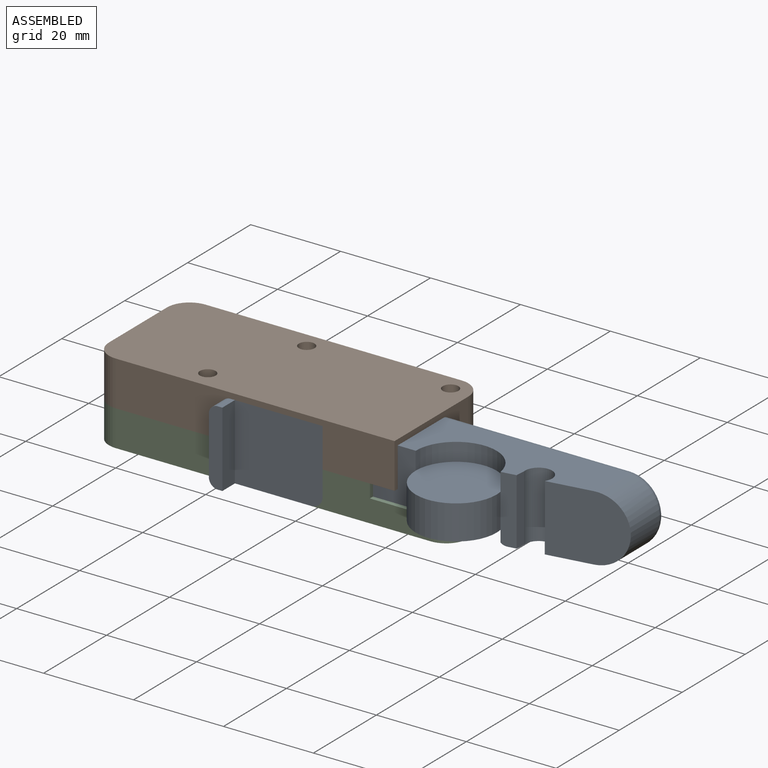
[diagram: assembled view]
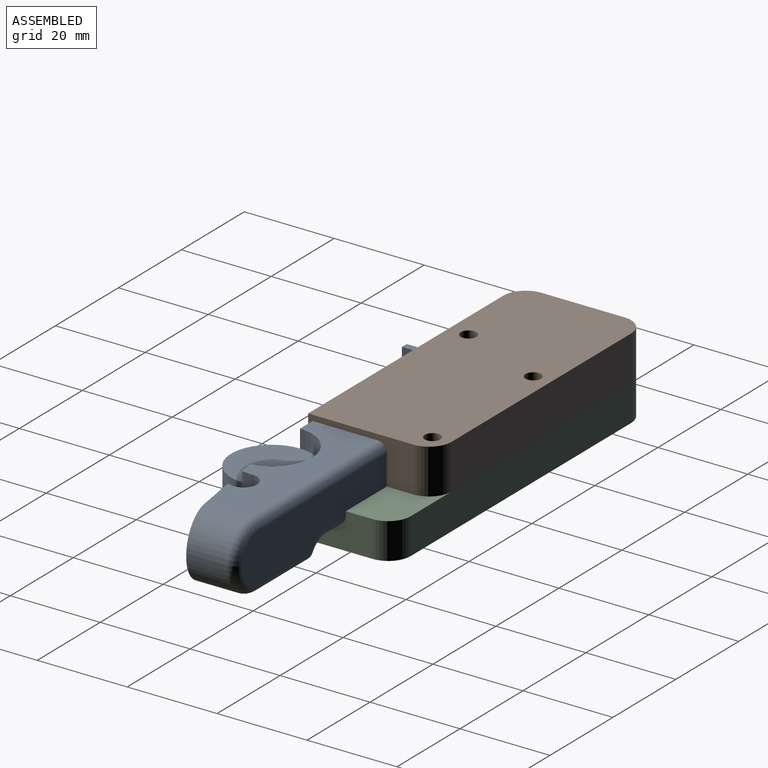
[diagram: assembled view, second angle]
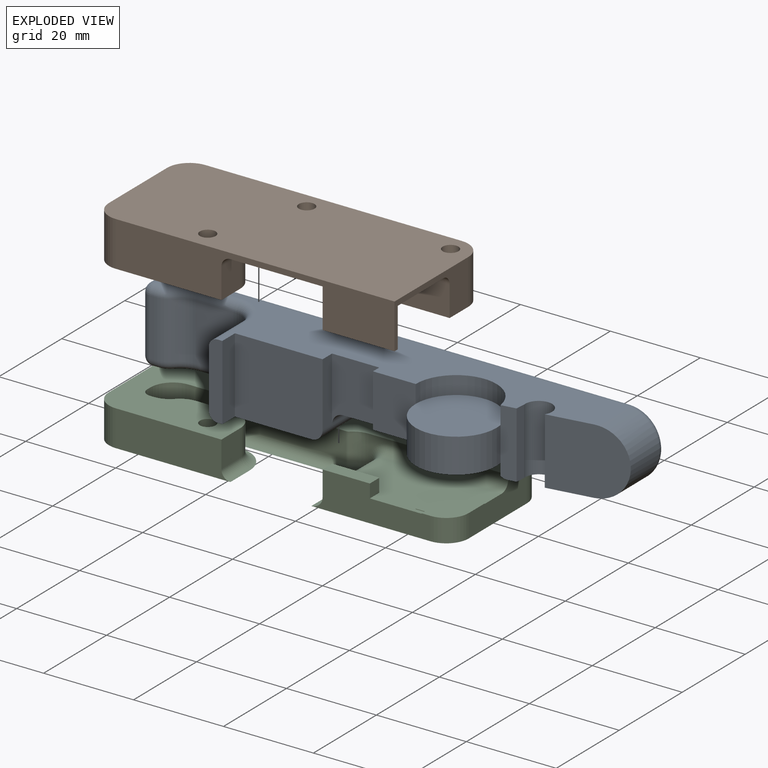
[diagram: exploded view]
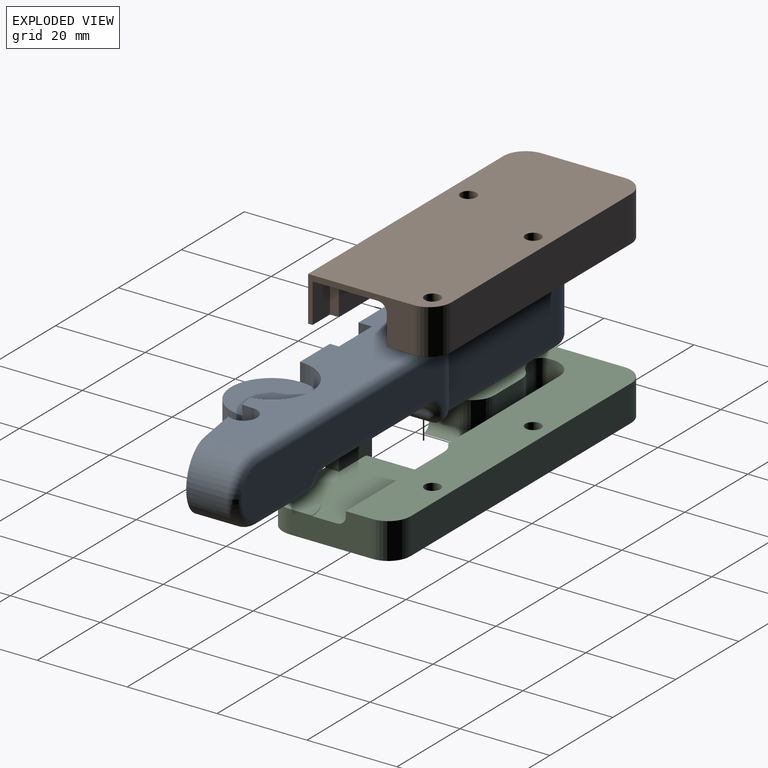
[diagram: exploded view, second angle]
ASSEMBLY  parts=3 mates=2
PART A: 71 faces, bbox 111x25.9x17.4 mm
  f0: cylinder r=9mm len=17.89mm, axis (0,0,-1), area 10.3mm2, adj f2,f12,f19,f30,f34,f35
  f1: plane 41.5x19.46mm, normal (0,0,-1), area 302.3mm2, adj f8,f31,f36,f37,f59,f60,f61,f62
  f2: plane 14.77x3.24mm, normal (0.16,-0.99,0), area 47.8mm2, adj f0,f4,f13,f18,f27,f28,f35
  f3: plane 64.03x12.42mm, normal (0,1,0), area 559.3mm2, adj f21,f50,f51,f52,f54,f55,f56,f57
  f4: plane 14.75x2.15mm, normal (1,-0.07,0), area 31.8mm2, adj f2,f5,f18,f27
  f5: cylinder r=3mm len=14.75mm, axis (0,0,-1), area 169.8mm2, adj f4,f6,f18,f27
  f6: plane 17.24x14.75mm, normal (0.16,-0.99,0), area 233.8mm2, adj f5,f18,f27,f33
  f7: plane 12.75x10mm, normal (-1,0,0), area 127.5mm2, adj f22,f37,f38,f70
  f8: plane 19.5x16.75mm, normal (0,-1,0), area 325.3mm2, adj f1,f9,f18,f31,f36
  f9: plane 14.25x3mm, normal (1,0,0), area 42.7mm2, adj f8,f10,f18,f31
  f10: plane 14.25x10.5mm, normal (0,-1,0), area 124.7mm2, adj f9,f11,f18,f19,f32
  f11: plane 11.75x2mm, normal (-1,0,0), area 23.5mm2, adj f10,f12,f18,f19
  f12: plane 11.75x9.5mm, normal (0,-1,0), area 111.6mm2, adj f0,f11,f13,f18,f19,f28
  f13: cylinder r=9mm len=17.89mm, axis (0,0,-1), area 107.5mm2, adj f2,f12,f18,f29
  f14: plane 35x12.75mm, normal (0,1,0), area 446.3mm2, adj f20,f24,f47,f61
  f15: plane 12.75x1mm, normal (-1,0,0), area 12.8mm2, adj f24,f26,f45,f63
  f16: plane 12.75x0.94mm, normal (0,-1,0), area 12mm2, adj f25,f26,f43,f65
  f17: plane 12.75x8.42mm, normal (0,-1,0), area 107.3mm2, adj f22,f23,f40,f68
  f18: plane 100.63x19.5mm, normal (0,0,1), area 934mm2, adj f2,f4,f5,f6,f8,f9,f10,f11
  f19: plane 31.79x14.5mm, normal (0,0,-1), area 335.1mm2, adj f0,f10,f11,f12,f32,f34,f55
  f20: cylinder r=1mm len=12.75mm, axis (0,0,1), area 9.2mm2, adj f14,f21,f48,f60
  f21: cylinder r=5mm len=12.75mm, axis (0,0,1), area 46mm2, adj f3,f20,f49,f58,f59
  f22: cylinder r=5mm len=12.75mm, axis (0,0,1), area 100.1mm2, adj f7,f17,f39,f69
  f23: cylinder r=5mm len=12.75mm, axis (0,0,-1), area 50.7mm2, adj f17,f25,f41,f67
  f24: cylinder r=5mm len=12.75mm, axis (0,0,-1), area 100.1mm2, adj f14,f15,f46,f62
  f25: cylinder r=5mm len=12.75mm, axis (0,0,-1), area 50.7mm2, adj f16,f23,f42,f66
  f26: cylinder r=2mm len=12.75mm, axis (0,0,-1), area 40.1mm2, adj f15,f16,f44,f64
  f27: plane 17.35x12.89mm, normal (0,0,-1), area 168.8mm2, adj f2,f4,f5,f6,f33,f35,f52
  f28: cylinder r=9mm len=18mm, axis (0,0,-1), area 227mm2, adj f2,f12,f29,f30
  f29: plane 18x18mm, normal (0,0,1), area 254.5mm2, adj f13,f28
  f30: plane 18x18mm, normal (0,0,-1), area 254.5mm2, adj f0,f28
  f31: cylinder r=2.5mm len=15.5mm, axis (0,1,0), area 60.8mm2, adj f1,f8,f9,f32,f57,f58
  f32: cylinder r=2.5mm len=12.5mm, axis (0,-1,0), area 49.1mm2, adj f10,f19,f31,f56
  f33: cylinder r=7.38mm len=14.75mm, axis (0,-1,0), area 218.3mm2, adj f6,f18,f27,f51
  f34: cylinder r=5mm len=12.46mm, axis (0.06,1,0), area 44.2mm2, adj f0,f19,f35,f54
  f35: cylinder r=2mm len=13.28mm, axis (0.06,1,0), area 25mm2, adj f0,f2,f27,f34,f53
  f36: plane 16.75x4mm, normal (1,0,0), area 67mm2, adj f1,f8,f18,f37
  f37: plane 16.75x3mm, normal (0,-1,0), area 48.5mm2, adj f1,f7,f18,f36,f38,f70
  f38: cylinder r=2mm len=10mm, axis (0,1,0), area 31.4mm2, adj f7,f18,f37,f39
  f39: torus R=7mm, axis (0,0,1), area 28.3mm2, adj f18,f22,f38,f40
  f40: cylinder r=2mm len=8.42mm, axis (-1,0,0), area 26.4mm2, adj f17,f18,f39,f41
  f41: torus R=7mm, axis (0,0,1), area 14.3mm2, adj f18,f23,f40,f42
  f42: torus R=3mm, axis (0,0,1), area 10.7mm2, adj f18,f25,f41,f43
  f43: cylinder r=2mm len=2mm, axis (-1,0,0), area 3mm2, adj f16,f18,f42,f44
  f44: sphere r=2mm, area 6.3mm2, adj f26,f43,f45
  f45: cylinder r=2mm len=2mm, axis (0,1,0), area 3.1mm2, adj f15,f18,f44,f46
  f46: torus R=3mm, axis (0,0,1), area 21.1mm2, adj f18,f24,f45,f47
  f47: cylinder r=2mm len=35mm, axis (1,0,0), area 110mm2, adj f14,f18,f46,f48
  f48: torus R=3mm, axis (0,0,1), area 3.9mm2, adj f18,f20,f47,f49
  f49: torus R=3mm, axis (0,0,1), area 9.7mm2, adj f18,f21,f48,f50
  f50: cylinder r=2mm len=58.66mm, axis (1,0,0), area 184.3mm2, adj f3,f18,f49,f51
  f51: torus R=5.38mm, axis (0,1,0), area 65.6mm2, adj f3,f33,f50,f52
  f52: cylinder r=2mm len=16.58mm, axis (-1,0,0), area 52.1mm2, adj f3,f27,f51,f53
  f53: sphere r=2mm, area 3.8mm2, adj f35,f52,f54
  f54: bspline ~5.75x4.14mm, area 17.1mm2, adj f3,f34,f53,f55
  f55: cylinder r=2mm len=31.79mm, axis (-1,0,0), area 99.9mm2, adj f3,f19,f54,f56
  f56: torus R=4.5mm, axis (0,1,0), area 15.9mm2, adj f3,f32,f55,f57
  f57: torus R=0.5mm, axis (0,1,0), area 2mm2, adj f3,f31,f56,f58
  f58: bspline ~3.4x2.45mm, area 7.4mm2, adj f21,f31,f57,f59
  f59: torus R=3mm, axis (0,0,1), area 7.6mm2, adj f1,f21,f58,f60
  f60: torus R=3mm, axis (0,0,1), area 3.9mm2, adj f1,f20,f59,f61
  f61: cylinder r=2mm len=35mm, axis (-1,0,0), area 110mm2, adj f1,f14,f60,f62
  f62: torus R=3mm, axis (0,0,1), area 21.1mm2, adj f1,f24,f61,f63
  f63: cylinder r=2mm len=2mm, axis (0,-1,0), area 3.1mm2, adj f1,f15,f62,f64
  f64: sphere r=2mm, area 6.3mm2, adj f26,f63,f65
  f65: cylinder r=2mm len=2mm, axis (1,0,0), area 3mm2, adj f1,f16,f64,f66
  f66: torus R=3mm, axis (0,0,1), area 10.7mm2, adj f1,f25,f65,f67
  f67: torus R=7mm, axis (0,0,1), area 14.3mm2, adj f1,f23,f66,f68
  f68: cylinder r=2mm len=8.42mm, axis (1,0,0), area 26.4mm2, adj f1,f17,f67,f69
  f69: torus R=7mm, axis (0,0,1), area 28.3mm2, adj f1,f22,f68,f70
  f70: cylinder r=2mm len=10mm, axis (0,-1,0), area 31.4mm2, adj f1,f7,f37,f69
PART B: 44 faces, bbox 67x28.4x10 mm
  f0: plane 67x28.43mm, normal (0,0,1), area 1860.1mm2, adj f3,f4,f5,f6,f7,f8,f40,f41
  f1: plane 67x28.43mm, normal (0,0,-1), area 1077.1mm2, adj f3,f4,f5,f6,f7,f8,f12,f13
  f2: plane 16x3mm, normal (0,0,-1), area 37mm2, adj f4,f5,f14,f15,f16,f17
  f3: plane 18.43x10mm, normal (-1,0,0), area 184.3mm2, adj f0,f1,f41,f43
  f4: plane 62x10mm, normal (0,-1,0), area 424mm2, adj f0,f1,f2,f5,f9,f10,f13,f14
  f5: plane 23.43x10mm, normal (1,0,0), area 90.8mm2, adj f0,f1,f2,f4,f10,f11,f12,f17
  f6: cylinder r=1.75mm len=10mm, axis (0,0,-1), area 110mm2, adj f0,f1
  f7: plane 57x10mm, normal (0,1,0), area 570mm2, adj f0,f1,f42,f43
  f8: cylinder r=1.75mm len=10mm, axis (0,0,-1), area 110mm2, adj f0,f1
  f9: cylinder r=2mm len=6mm, axis (0,1,0), area 18.8mm2, adj f4,f10,f13,f29
  f10: plane 60x15.5mm, normal (0,0,-1), area 548mm2, adj f4,f5,f9,f11,f14,f15,f16,f17
  f11: cylinder r=2mm len=18.03mm, axis (1,0,0), area 56.6mm2, adj f5,f10,f12,f39
  f12: plane 18.03x6.75mm, normal (0,-1,0), area 121.7mm2, adj f1,f5,f11,f23
  f13: plane 6.75x6mm, normal (1,0,0), area 40.5mm2, adj f1,f4,f9,f24
  f14: plane 8.75x3mm, normal (-1,0,0), area 26.3mm2, adj f2,f4,f10,f15
  f15: plane 10.5x8.75mm, normal (0,1,0), area 91.9mm2, adj f2,f10,f14,f16
  f16: plane 8.75x2mm, normal (1,0,0), area 17.5mm2, adj f2,f10,f15,f17
  f17: plane 8.75x5.5mm, normal (0,1,0), area 48.1mm2, adj f2,f5,f10,f16
  f18: plane 35x6.75mm, normal (0,-1,0), area 236.2mm2, adj f1,f22,f26,f37
  f19: plane 6.75x1mm, normal (1,0,0), area 6.8mm2, adj f1,f26,f28,f35
  f20: plane 6.75x0.94mm, normal (0,1,0), area 6.4mm2, adj f1,f27,f28,f33
  f21: plane 8.42x6.75mm, normal (0,1,0), area 56.8mm2, adj f1,f24,f25,f30
  f22: cylinder r=1mm len=6.75mm, axis (0,0,1), area 4.9mm2, adj f1,f18,f23,f38
  f23: cylinder r=5mm len=6.75mm, axis (0,0,1), area 24.4mm2, adj f1,f12,f22,f39
  f24: cylinder r=5mm len=6.75mm, axis (0,0,1), area 53mm2, adj f1,f13,f21,f29
  f25: cylinder r=5mm len=6.75mm, axis (0,0,-1), area 26.8mm2, adj f1,f21,f27,f31
  f26: cylinder r=5mm len=6.75mm, axis (0,0,-1), area 53mm2, adj f1,f18,f19,f36
  f27: cylinder r=5mm len=6.75mm, axis (0,0,-1), area 26.8mm2, adj f1,f20,f25,f32
  f28: cylinder r=2mm len=6.75mm, axis (0,0,-1), area 21.2mm2, adj f1,f19,f20,f34
  f29: torus R=7mm, axis (0,0,1), area 28.3mm2, adj f9,f10,f24,f30
  f30: cylinder r=2mm len=8.42mm, axis (-1,0,0), area 26.4mm2, adj f10,f21,f29,f31
  f31: torus R=7mm, axis (0,0,1), area 14.3mm2, adj f10,f25,f30,f32
  f32: torus R=3mm, axis (0,0,1), area 10.7mm2, adj f10,f27,f31,f33
  f33: cylinder r=2mm len=2mm, axis (-1,0,0), area 3mm2, adj f10,f20,f32,f34
  f34: sphere r=2mm, area 6.3mm2, adj f28,f33,f35
  f35: cylinder r=2mm len=2mm, axis (0,1,0), area 3.1mm2, adj f10,f19,f34,f36
  f36: torus R=3mm, axis (0,0,1), area 21.1mm2, adj f10,f26,f35,f37
  f37: cylinder r=2mm len=35mm, axis (1,0,0), area 110mm2, adj f10,f18,f36,f38
  f38: torus R=3mm, axis (0,0,1), area 3.9mm2, adj f10,f22,f37,f39
  f39: torus R=3mm, axis (0,0,1), area 9.7mm2, adj f10,f11,f23,f38
  f40: cylinder r=1.75mm len=10mm, axis (0,0,-1), area 110mm2, adj f0,f1
  f41: cylinder r=5mm len=10mm, axis (0,0,1), area 78.5mm2, adj f0,f1,f3,f4
  f42: cylinder r=5mm len=10mm, axis (0,0,1), area 78.5mm2, adj f0,f1,f5,f7
  f43: cylinder r=5mm len=10mm, axis (0,0,-1), area 78.5mm2, adj f0,f1,f3,f7
PART C: 54 faces, bbox 80x28.4x8.9 mm
  f0: plane 26.5x8mm, normal (0,-1,0), area 153mm2, adj f1,f5,f11,f13,f18,f26,f27,f46
  f1: plane 10.5x3mm, normal (0,0,1), area 31.5mm2, adj f0,f11,f12,f13
  f2: plane 18.43x8mm, normal (1,0,0), area 111.3mm2, adj f4,f5,f8,f9,f18,f26,f29,f50
  f3: plane 25.5x8mm, normal (0,-1,0), area 188.9mm2, adj f4,f5,f10,f44,f52
  f4: plane 80x28.43mm, normal (0,0,1), area 1219.2mm2, adj f2,f3,f6,f7,f9,f10,f14,f15
  f5: plane 80x28.43mm, normal (0,0,-1), area 1926mm2, adj f0,f2,f3,f6,f7,f27,f33,f34
  f6: plane 70x8mm, normal (0,1,0), area 560mm2, adj f4,f5,f50,f51
  f7: plane 18.43x8mm, normal (-1,0,0), area 147.5mm2, adj f4,f5,f51,f52
  f8: cylinder r=9mm len=9mm, axis (0,0,-1), area 1.4mm2, adj f2,f18,f26,f45
  f9: plane 31.03x5.67mm, normal (0,-1,0), area 35.5mm2, adj f2,f4,f20,f29,f30,f31
  f10: plane 6x6mm, normal (1,0,0), area 36mm2, adj f3,f4,f21,f44
  f11: plane 5.5x3mm, normal (-1,0,0), area 16.5mm2, adj f0,f1,f12,f27
  f12: plane 10.5x5.5mm, normal (0,1,0), area 32.8mm2, adj f1,f11,f13,f18,f28
  f13: plane 3x3mm, normal (1,0,0), area 9mm2, adj f0,f1,f12,f18
  f14: plane 35x6mm, normal (0,-1,0), area 210mm2, adj f4,f19,f23,f35
  f15: plane 6x1mm, normal (1,0,0), area 6mm2, adj f4,f23,f25,f37
  f16: plane 6x0.94mm, normal (0,1,0), area 5.6mm2, adj f4,f24,f25,f39
  f17: plane 8.42x6mm, normal (0,1,0), area 50.5mm2, adj f4,f21,f22,f42
  f18: plane 26.5x15.5mm, normal (0,0,1), area 316.1mm2, adj f0,f2,f8,f12,f13,f28,f29,f45
  f19: cylinder r=1mm len=6mm, axis (0,0,1), area 4.3mm2, adj f4,f14,f20,f34
  f20: cylinder r=5mm len=6mm, axis (0,0,1), area 21.6mm2, adj f4,f9,f19,f32,f33
  f21: cylinder r=5mm len=6mm, axis (0,0,1), area 47.1mm2, adj f4,f10,f17,f43
  f22: cylinder r=5mm len=6mm, axis (0,0,-1), area 23.9mm2, adj f4,f17,f24,f41
  f23: cylinder r=5mm len=6mm, axis (0,0,-1), area 47.1mm2, adj f4,f14,f15,f36
  f24: cylinder r=5mm len=6mm, axis (0,0,-1), area 23.9mm2, adj f4,f16,f22,f40
  f25: cylinder r=2mm len=6mm, axis (0,0,-1), area 18.8mm2, adj f4,f15,f16,f38
  f26: plane 10x9mm, normal (0,0,1), area 65.3mm2, adj f0,f2,f8,f45,f46,f53
  f27: cylinder r=2.5mm len=15.5mm, axis (0,1,0), area 60.8mm2, adj f0,f5,f11,f28,f31,f32
  f28: cylinder r=2.5mm len=12.5mm, axis (0,-1,0), area 49.1mm2, adj f12,f18,f27,f30
  f29: cylinder r=2mm len=26.5mm, axis (-1,0,0), area 83.3mm2, adj f2,f9,f18,f30
  f30: torus R=4.5mm, axis (0,1,0), area 15.9mm2, adj f9,f28,f29,f31
  f31: torus R=0.5mm, axis (0,1,0), area 2mm2, adj f9,f27,f30,f32
  f32: bspline ~3.4x2.45mm, area 7.4mm2, adj f20,f27,f31,f33
  f33: torus R=3mm, axis (0,0,1), area 7.6mm2, adj f5,f20,f32,f34
  f34: torus R=3mm, axis (0,0,1), area 3.9mm2, adj f5,f19,f33,f35
  f35: cylinder r=2mm len=35mm, axis (-1,0,0), area 110mm2, adj f5,f14,f34,f36
  f36: torus R=3mm, axis (0,0,1), area 21.1mm2, adj f5,f23,f35,f37
  f37: cylinder r=2mm len=2mm, axis (0,-1,0), area 3.1mm2, adj f5,f15,f36,f38
  f38: sphere r=2mm, area 6.3mm2, adj f25,f37,f39
  f39: cylinder r=2mm len=2mm, axis (1,0,0), area 3mm2, adj f5,f16,f38,f40
  f40: torus R=3mm, axis (0,0,1), area 10.7mm2, adj f5,f24,f39,f41
  f41: torus R=7mm, axis (0,0,1), area 14.3mm2, adj f5,f22,f40,f42
  f42: cylinder r=2mm len=8.42mm, axis (1,0,0), area 26.4mm2, adj f5,f17,f41,f43
  f43: torus R=7mm, axis (0,0,1), area 28.3mm2, adj f5,f21,f42,f44
  f44: cylinder r=2mm len=6mm, axis (0,-1,0), area 18.8mm2, adj f3,f5,f10,f43
  f45: plane 2x0.1mm, normal (0,-1,0), area 0.2mm2, adj f8,f18,f26,f46
  f46: plane 1x0.1mm, normal (-1,0,0), area 0.1mm2, adj f0,f18,f26,f45
  f47: cylinder r=1.75mm len=8mm, axis (0,0,-1), area 88mm2, adj f4,f5
  f48: cylinder r=1.75mm len=8mm, axis (0,0,-1), area 88mm2, adj f4,f5
  f49: cylinder r=1.75mm len=8mm, axis (0,0,-1), area 88mm2, adj f4,f5
  f50: cylinder r=5mm len=8mm, axis (0,0,1), area 62.8mm2, adj f2,f4,f5,f6
  f51: cylinder r=5mm len=8mm, axis (0,0,-1), area 62.8mm2, adj f4,f5,f6,f7
  f52: cylinder r=5mm len=8mm, axis (0,0,1), area 62.8mm2, adj f3,f4,f5,f7
  f53: cylinder r=5mm len=5.1mm, axis (0,0,-1), area 40.1mm2, adj f0,f2,f5,f26
PLACE A t=(-7.62,-15.72,6.26)mm
PLACE B t=(-7.62,-15.72,6.26)mm
PLACE C t=(-7.62,-15.72,6.26)mm
MATE fastened B.f6 <-> C.f48  axis (0,0,-1) through (-65.26,-11.78,14.26)mm
MATE fastened A.f19 <-> C.f18  axis (0,0,-1) through (-30.12,-13.22,11.26)mm
